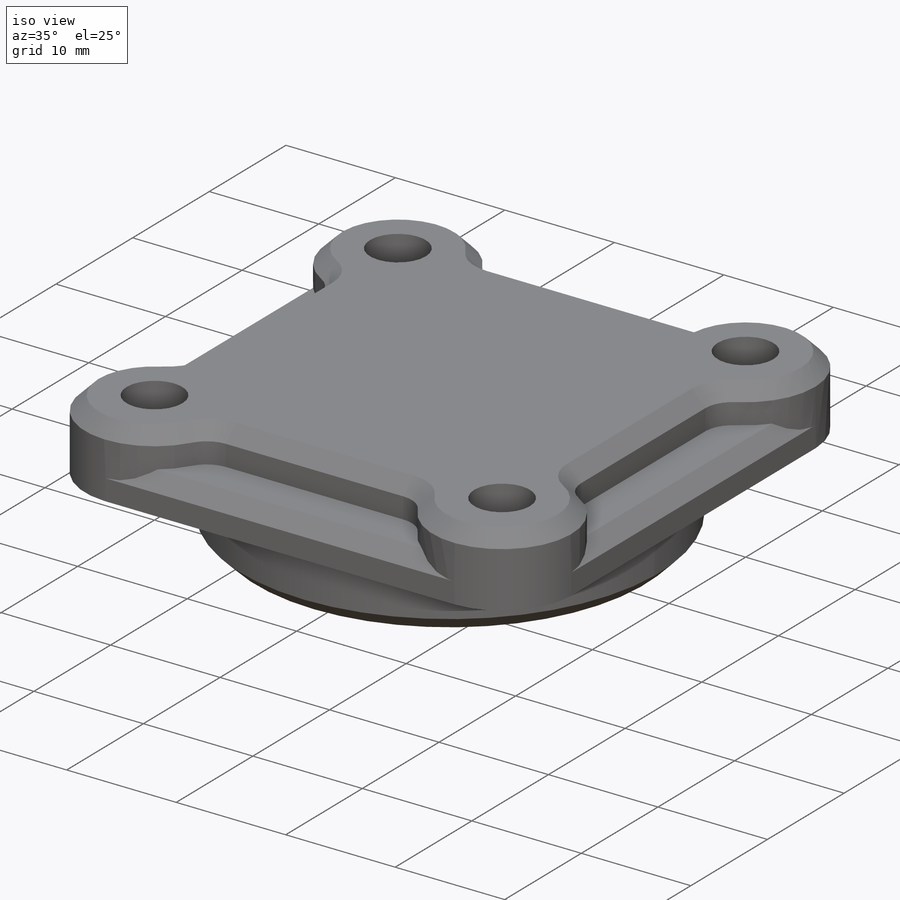
[diagram: iso view]
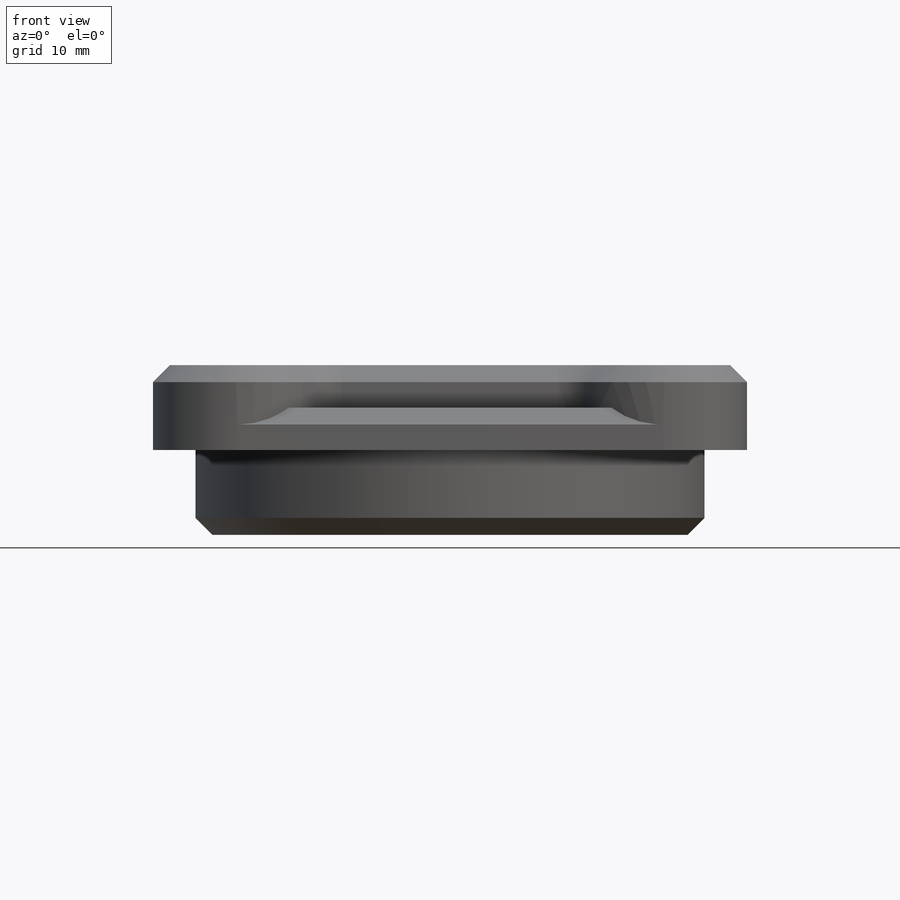
[diagram: front view]
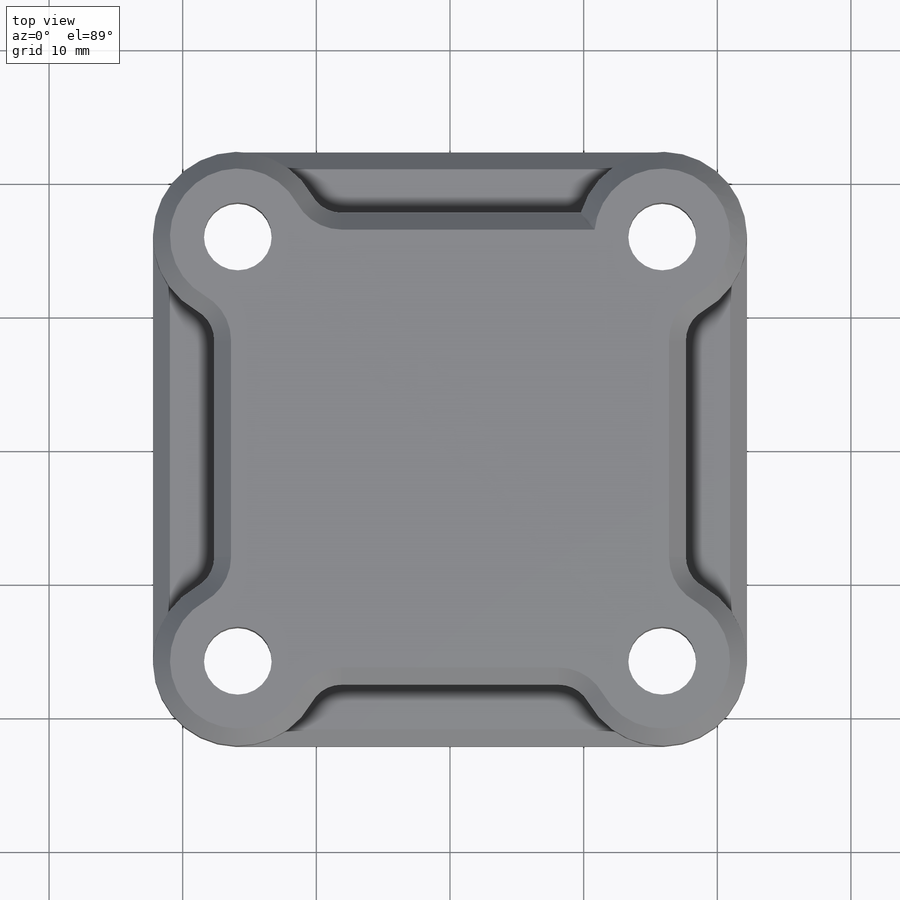
[diagram: top view]
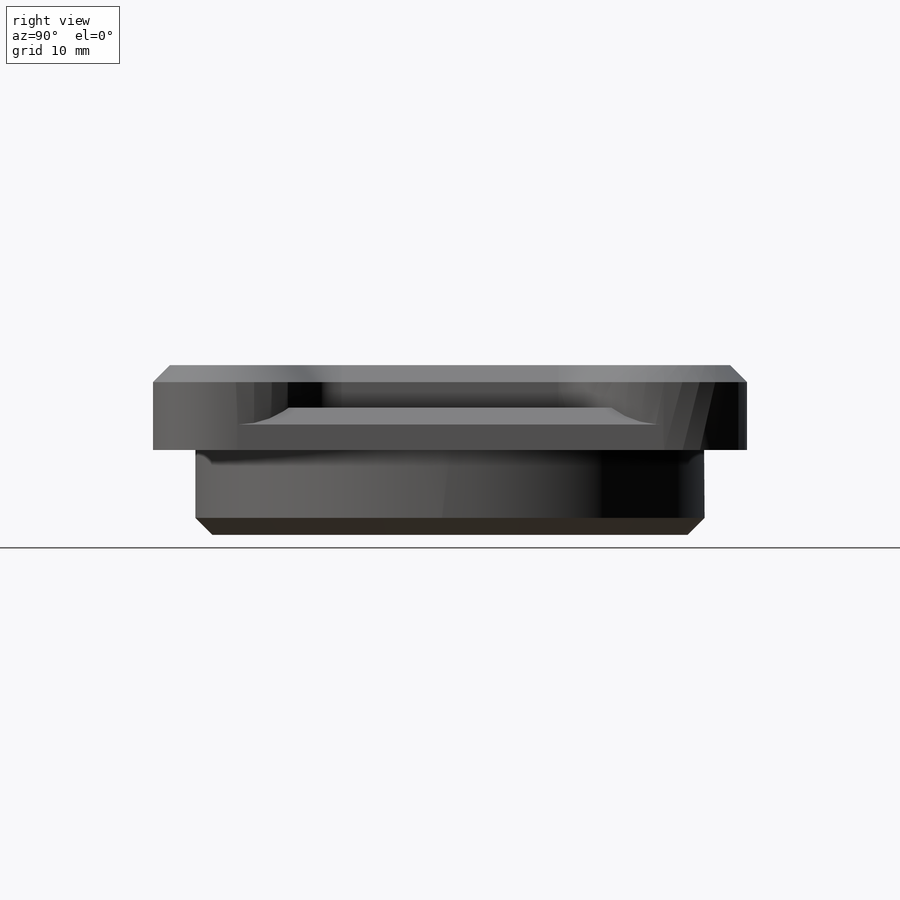
[diagram: right view]
SOLIDWORKS PART (.sldprt)
format: sldprt  version: not decoded by parser v0  size: 648,192 bytes
history: native  units: mm
features: sketch x4, extrude x3, material x1, cut_extrude x1, chamfer x1 (+11 scaffold rows collapsed)
feature tree (21):
  scaffold x11  (default folders/planes/origin — collapsed)
  material  "6061 Alloy"
  sketch  "Sketch1"  dims[c1.D1=19.05mm c1.D3=12.7mm c2.D1=44.45mm c2.D2=44.45mm c3.D1=44.45mm c3.D2=44.45mm]
  extrude  "Boss-Extrude1"  Depth=3.175mm
  sketch  "Sketch2"  dims[D3=2.54mm D1=~17.653645mm D2=17.653mm]
  extrude  "Boss-Extrude2"  Depth=3.175mm
  sketch  "Sketch3"  dims[D1=31.75mm D2=38.1mm]
  extrude  "Boss-Extrude3"  Depth=6.35mm
  sketch  "Sketch4"  dims[D1=5.08mm]
  cut_extrude  "Cut-Extrude1"  [1 undecoded]
  chamfer  "Chamfer1"  Distance=1.27mm Angle=45deg
decode coverage: 8 of 9 modeling features carry decoded parameters
note: ~ marks probable driven/reference dimensions
note: 1 parameter value undecoded
note: suppression state not decoded; provenance and decode notes live in map.json
